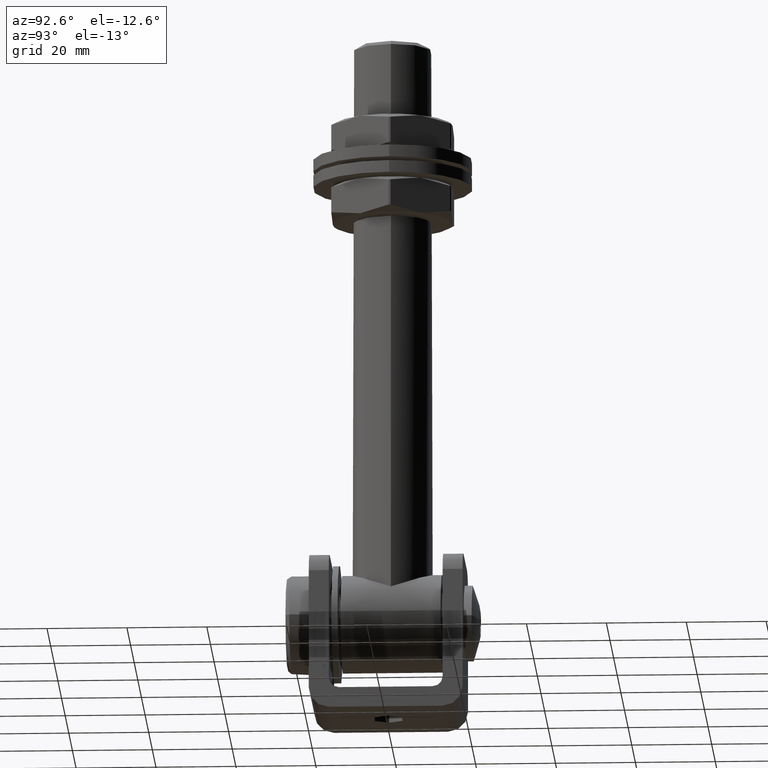
[diagram: clean part render]
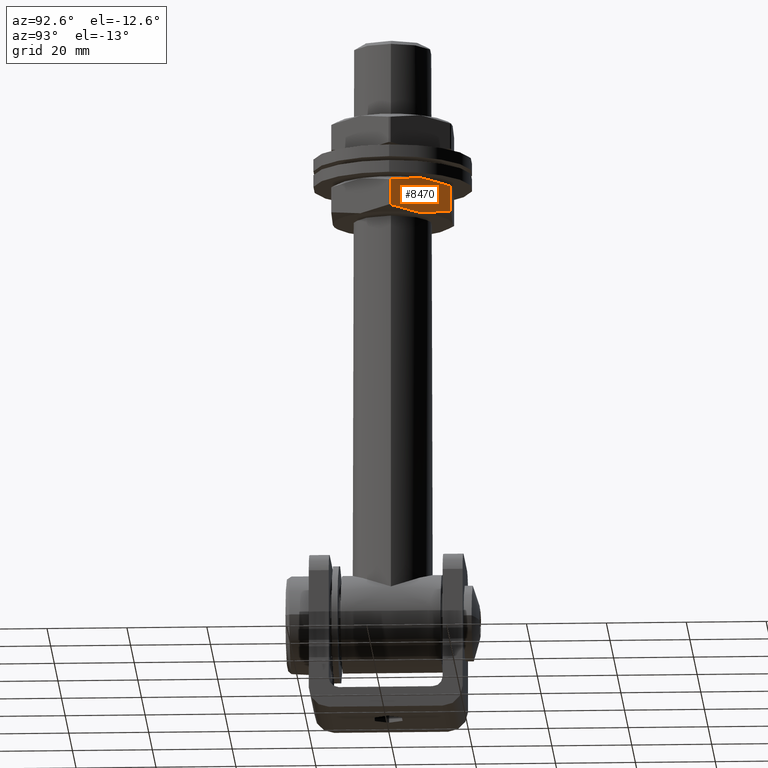
[diagram: same view with one face highlighted and labeled with its STEP entity id]
A machine part, auxiliary view. The second image highlights one B-rep face of the part: STEP entity #8470.
In plain terms, the highlighted planar face has unit normal (-0.866, -0.5, 0).
Its self-contained STEP definition (entity closure, byte-faithful):
#99 = ORIENTED_EDGE ( 'NONE', *, *, #16572, .T. ) ;
#562 = CARTESIAN_POINT ( 'NONE',  ( 11.22252638838139305, -4.271100192624984082, -10.56201410604024815 ) ) ;
#613 = ORIENTED_EDGE ( 'NONE', *, *, #5423, .T. ) ;
#792 = EDGE_CURVE ( 'NONE', #3401, #12660, #3753, .T. ) ;
#1335 = EDGE_LOOP ( 'NONE', ( #99, #613, #6298, #9949, #11717, #4518 ) ) ;
#1855 = CARTESIAN_POINT ( 'NONE',  ( 11.57308690788053873, -4.355961152674100667, -9.954825475139989166 ) ) ;
#1940 = CARTESIAN_POINT ( 'NONE',  ( 12.99038105676637578, -4.500000000000003553, -7.499999999999804601 ) ) ;
#1970 = DIRECTION ( 'NONE',  ( 0.5000000000000007772, 0.000000000000000000, 0.8660254037844381525 ) ) ;
#2059 = AXIS2_PLACEMENT_3D ( 'NONE', #16392, #7669, #1970 ) ;
#2315 = CARTESIAN_POINT ( 'NONE',  ( 14.40767520565202808, 4.355961152674088233, -5.045174524859599607 ) ) ;
#2495 = EDGE_CURVE ( 'NONE', #9797, #3401, #18357, .T. ) ;
#3026 = CARTESIAN_POINT ( 'NONE',  ( 12.27769715201361045, 4.500000000000223821, -8.734404732768000557 ) ) ;
#3401 = VERTEX_POINT ( 'NONE', #14825 ) ;
#3443 = EDGE_CURVE ( 'NONE', #12660, #16073, #12025, .T. ) ;
#3664 = CARTESIAN_POINT ( 'NONE',  ( 17.17617050839096038, 4.500000000000003553, -0.2499999999999993616 ) ) ;
#3690 = LINE ( 'NONE', #3664, #12546 ) ;
#3753 = LINE ( 'NONE', #16620, #18737 ) ;
#3901 = CARTESIAN_POINT ( 'NONE',  ( 15.80384537938013878, 3.943203950645808753, -2.626936847950256393 ) ) ;
#4501 = CARTESIAN_POINT ( 'NONE',  ( 12.99038105676637578, 4.500000000000003553, -7.499999999999804601 ) ) ;
#4518 = ORIENTED_EDGE ( 'NONE', *, *, #3443, .T. ) ;
#4653 = CARTESIAN_POINT ( 'NONE',  ( 14.40719747518222604, -4.380936946784531827, -5.046001978305626245 ) ) ;
#5423 = EDGE_CURVE ( 'NONE', #14929, #11577, #3690, .T. ) ;
#6121 = CARTESIAN_POINT ( 'NONE',  ( 13.70306496151896880, -4.500000000000214051, -6.265595267231564236 ) ) ;
#6161 = CARTESIAN_POINT ( 'NONE',  ( 9.487921627489265930, -3.627071147645365645, -13.56643768295627517 ) ) ;
#6298 = ORIENTED_EDGE ( 'NONE', *, *, #15720, .T. ) ;
#6350 = CARTESIAN_POINT ( 'NONE',  ( 10.17691673415238007, -3.943203950645807865, -12.37306315204942564 ) ) ;
#7312 = CARTESIAN_POINT ( 'NONE',  ( 9.489589927465562624, 3.628009959460094525, -13.56354810263505684 ) ) ;
#7669 = DIRECTION ( 'NONE',  ( -0.8660254037844382635, 0.000000000000000000, 0.5000000000000008882 ) ) ;
#7806 = CARTESIAN_POINT ( 'NONE',  ( 12.63540191847462246, -4.500000000000222045, -8.114841903147977931 ) ) ;
#7943 = CARTESIAN_POINT ( 'NONE',  ( 14.75823572515116311, 4.271100192624973424, -4.437985893959365491 ) ) ;
#8002 = CARTESIAN_POINT ( 'NONE',  ( 13.34536019505799764, 4.500000000000221156, -6.885158096851538012 ) ) ;
#8020 = CARTESIAN_POINT ( 'NONE',  ( 8.804591605141332877, 3.242537006636403429, -14.75000000000014744 ) ) ;
#8196 = CARTESIAN_POINT ( 'NONE',  ( 13.70198089623467474, 4.470464509671230324, -6.267472923382688244 ) ) ;
#8470 = ADVANCED_FACE ( 'NONE', ( #13985 ), #9196, .F. ) ;
#9196 = PLANE ( 'NONE',  #2059 ) ;
#9279 = CARTESIAN_POINT ( 'NONE',  ( 12.99038105676637578, -4.500000000000003553, -7.499999999999804601 ) ) ;
#9797 = VERTEX_POINT ( 'NONE', #9279 ) ;
#9949 = ORIENTED_EDGE ( 'NONE', *, *, #2495, .T. ) ;
#10742 = CARTESIAN_POINT ( 'NONE',  ( 8.804591605141538935, -3.242537006636514452, -14.74999999999979217 ) ) ;
#10768 = DIRECTION ( 'NONE',  ( -0.000000000000000000, 1.000000000000000000, -0.000000000000000000 ) ) ;
#10906 = CARTESIAN_POINT ( 'NONE',  ( 17.17617050839096038, 3.242537006636514452, -0.2499999999999995837 ) ) ;
#11141 = CARTESIAN_POINT ( 'NONE',  ( 16.49284048604322095, 3.627071147645378080, -1.433562317043453049 ) ) ;
#11453 = CARTESIAN_POINT ( 'NONE',  ( 8.804591605141332877, 3.242537006636403429, -14.75000000000014744 ) ) ;
#11577 = VERTEX_POINT ( 'NONE', #12102 ) ;
#11717 = ORIENTED_EDGE ( 'NONE', *, *, #792, .T. ) ;
#12016 = CARTESIAN_POINT ( 'NONE',  ( 12.99038105676637578, -4.500000000000003553, -7.499999999999804601 ) ) ;
#12025 = B_SPLINE_CURVE_WITH_KNOTS ( 'NONE', 3,
 ( #11453, #7312, #16095, #17500, #3026, #18685 ),
 .UNSPECIFIED., .F., .F.,
 ( 4, 2, 4 ),
 ( 0.0002976797144595352829, 0.004530338165266601692, 0.008762996616073668102 ),
 .UNSPECIFIED. ) ;
#12078 = CARTESIAN_POINT ( 'NONE',  ( 12.27878121729792582, -4.470464509671238318, -8.732527076616854345 ) ) ;
#12102 = CARTESIAN_POINT ( 'NONE',  ( 17.17617050839116288, -3.242537006636403429, -0.2499999999996474209 ) ) ;
#12546 = VECTOR ( 'NONE', #15141, 1000.000000000000000 ) ;
#12660 = VERTEX_POINT ( 'NONE', #8020 ) ;
#13353 = CARTESIAN_POINT ( 'NONE',  ( 15.80120340677592949, -3.944278057055919717, -2.631512878732948035 ) ) ;
#13925 = CARTESIAN_POINT ( 'NONE',  ( 17.17617050839096038, 3.242537006636514452, -0.2499999999999995837 ) ) ;
#13985 = FACE_OUTER_BOUND ( 'NONE', #1335, .T. ) ;
#14825 = CARTESIAN_POINT ( 'NONE',  ( 8.804591605141538935, -3.242537006636514452, -14.74999999999979217 ) ) ;
#14924 = CARTESIAN_POINT ( 'NONE',  ( 16.49117218606692958, -3.628009959460112732, -1.436451897364672048 ) ) ;
#14929 = VERTEX_POINT ( 'NONE', #10906 ) ;
#15141 = DIRECTION ( 'NONE',  ( 0.000000000000000000, -1.000000000000000000, 0.000000000000000000 ) ) ;
#15720 = EDGE_CURVE ( 'NONE', #11577, #9797, #16833, .T. ) ;
#16073 = VERTEX_POINT ( 'NONE', #4501 ) ;
#16095 = CARTESIAN_POINT ( 'NONE',  ( 10.17955870675658403, 3.944278057055917053, -12.36848712126673888 ) ) ;
#16392 = CARTESIAN_POINT ( 'NONE',  ( 17.32050807568836603, 4.500000000000003553, -4.336808689942017736E-15 ) ) ;
#16572 = EDGE_CURVE ( 'NONE', #16073, #14929, #17470, .T. ) ;
#16620 = CARTESIAN_POINT ( 'NONE',  ( 8.804591605141538935, 4.500000000000003553, -14.74999999999979217 ) ) ;
#16833 = B_SPLINE_CURVE_WITH_KNOTS ( 'NONE', 3,
 ( #17614, #14924, #13353, #4653, #6121, #1940 ),
 .UNSPECIFIED., .F., .F.,
 ( 4, 2, 4 ),
 ( 0.0002976797144595378850, 0.004530338165266561794, 0.008762996616073583100 ),
 .UNSPECIFIED. ) ;
#17470 = B_SPLINE_CURVE_WITH_KNOTS ( 'NONE', 3,
 ( #18364, #8002, #8196, #2315, #7943, #3901, #11141, #13925 ),
 .UNSPECIFIED., .F., .F.,
 ( 4, 2, 2, 4 ),
 ( 0.008762996616073668102, 0.01087123203367021049, 0.01297946745126675461, 0.01719593828645984285 ),
 .UNSPECIFIED. ) ;
#17500 = CARTESIAN_POINT ( 'NONE',  ( 11.57356463835033367, 4.380936946784544261, -9.953998021693978515 ) ) ;
#17614 = CARTESIAN_POINT ( 'NONE',  ( 17.17617050839116288, -3.242537006636403429, -0.2499999999996474209 ) ) ;
#18357 = B_SPLINE_CURVE_WITH_KNOTS ( 'NONE', 3,
 ( #12016, #7806, #12078, #1855, #562, #6350, #6161, #10742 ),
 .UNSPECIFIED., .F., .F.,
 ( 4, 2, 2, 4 ),
 ( 0.008762996616073583100, 0.01087123203367014804, 0.01297946745126671297, 0.01719593828645984285 ),
 .UNSPECIFIED. ) ;
#18364 = CARTESIAN_POINT ( 'NONE',  ( 12.99038105676637578, 4.500000000000003553, -7.499999999999804601 ) ) ;
#18685 = CARTESIAN_POINT ( 'NONE',  ( 12.99038105676637578, 4.500000000000003553, -7.499999999999804601 ) ) ;
#18737 = VECTOR ( 'NONE', #10768, 1000.000000000000000 ) ;